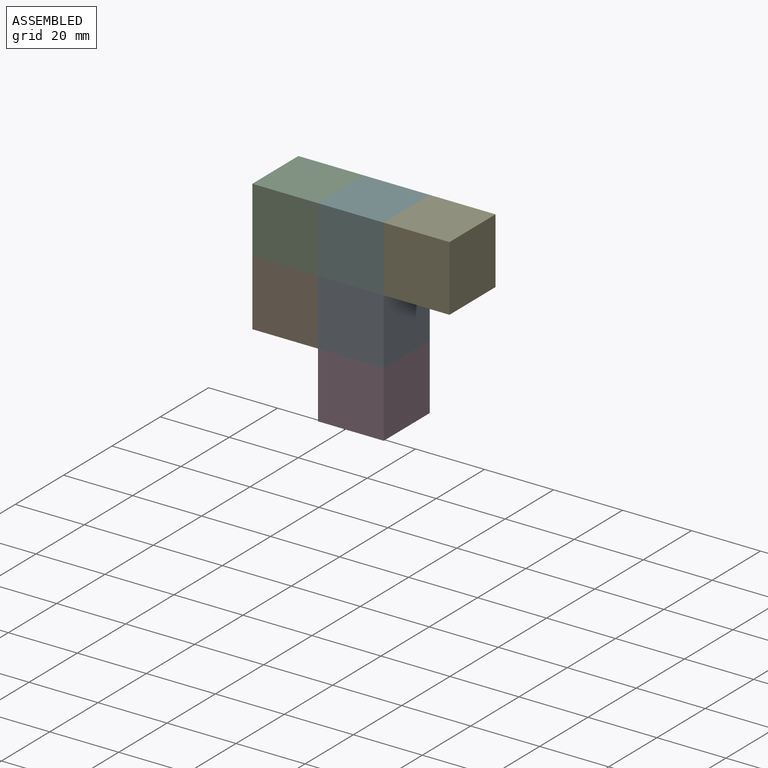
[diagram: assembled view]
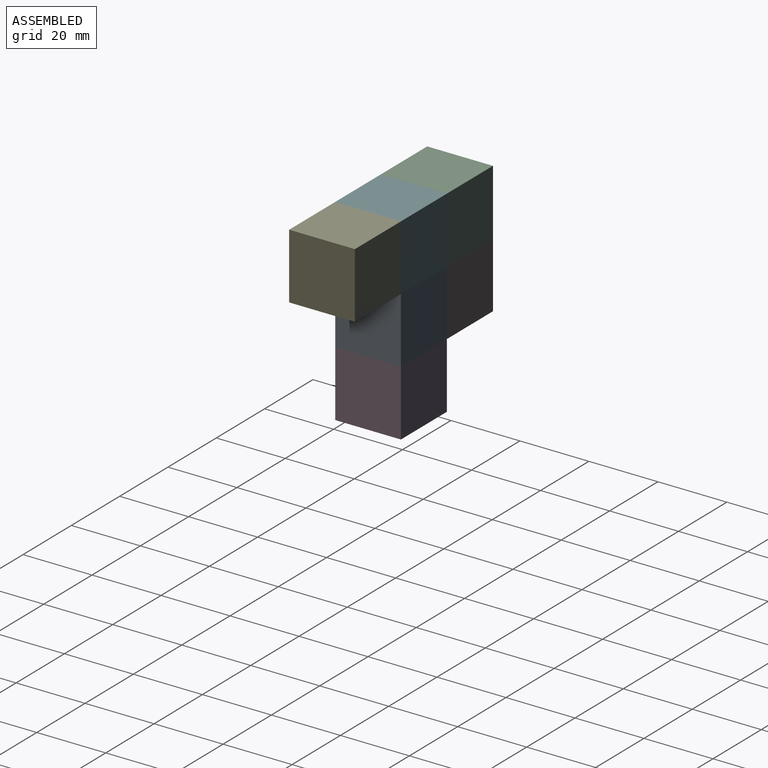
[diagram: assembled view, second angle]
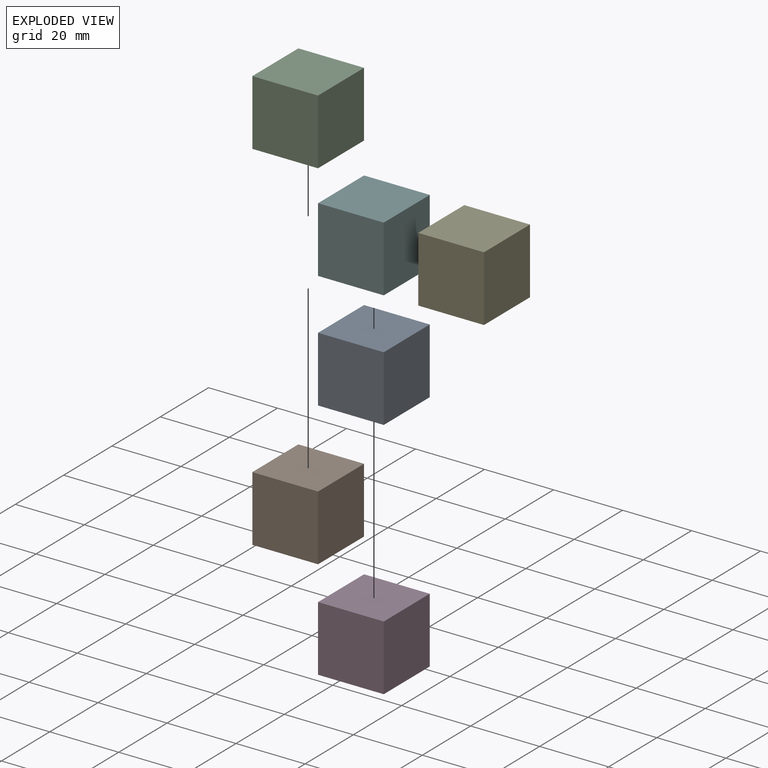
[diagram: exploded view]
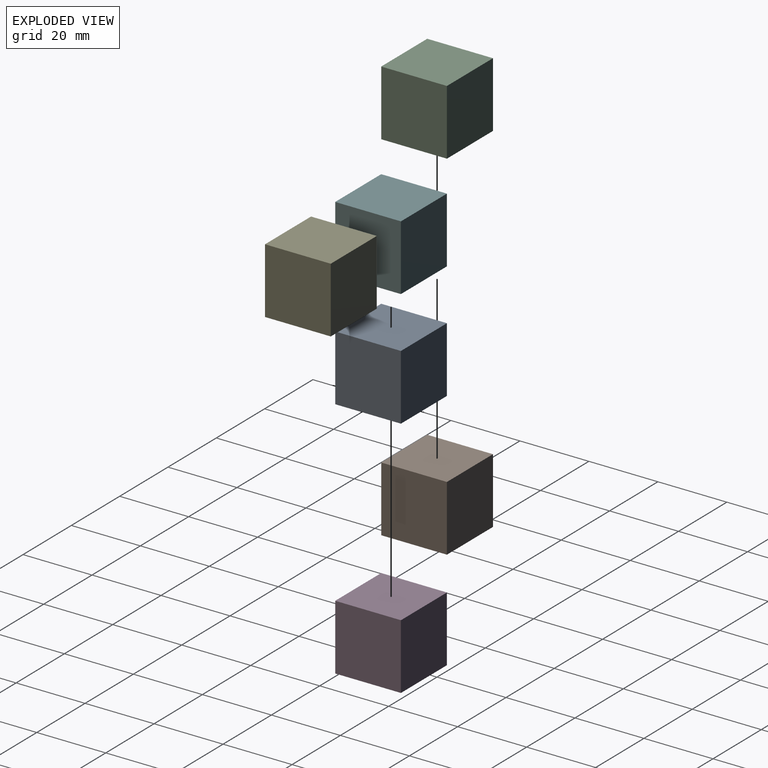
[diagram: exploded view, second angle]
ASSEMBLY  parts=6 mates=5
PART A: 6 faces, bbox 19.1x19.1x19.1 mm
  f0: plane 19.05x19.05mm, normal (-1,0,0), area 362.9mm2, adj f1,f3,f4,f5
  f1: plane 19.05x19.05mm, normal (0,0,-1), area 362.9mm2, adj f0,f2,f4,f5
  f2: plane 19.05x19.05mm, normal (1,0,0), area 362.9mm2, adj f1,f3,f4,f5
  f3: plane 19.05x19.05mm, normal (0,0,1), area 362.9mm2, adj f0,f2,f4,f5
  f4: plane 19.05x19.05mm, normal (0,-1,0), area 362.9mm2, adj f0,f1,f2,f3
  f5: plane 19.05x19.05mm, normal (0,1,0), area 362.9mm2, adj f0,f1,f2,f3
PART B: same geometry as A
PART C: same geometry as A
PART D: same geometry as A
PART E: same geometry as A
PART F: same geometry as A
PLACE A t=(24.88,10.12,-27.1)mm
PLACE B t=(5.83,10.12,-27.1)mm
PLACE C t=(5.83,10.12,-8.05)mm
PLACE D t=(24.88,10.12,-46.15)mm
PLACE E t=(43.93,10.12,-8.05)mm
PLACE F t=(24.88,10.12,-8.05)mm
MATE fastened B.f3 <-> C.f1  axis (0,0,1) through (5.83,10.12,-17.57)mm
MATE fastened F.f1 <-> A.f3  axis (0,0,-1) through (24.88,10.12,-17.57)mm
MATE fastened D.f3 <-> A.f1  axis (0,0,1) through (24.88,10.12,-36.62)mm
MATE fastened C.f2 <-> F.f0  axis (1,0,0) through (15.36,10.12,-8.05)mm
MATE fastened E.f0 <-> F.f2  axis (-1,0,0) through (34.41,10.12,-8.05)mm
